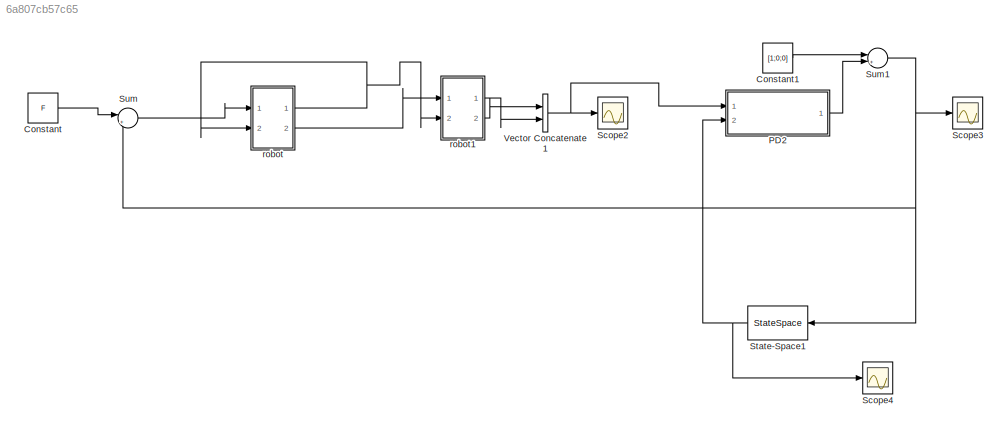
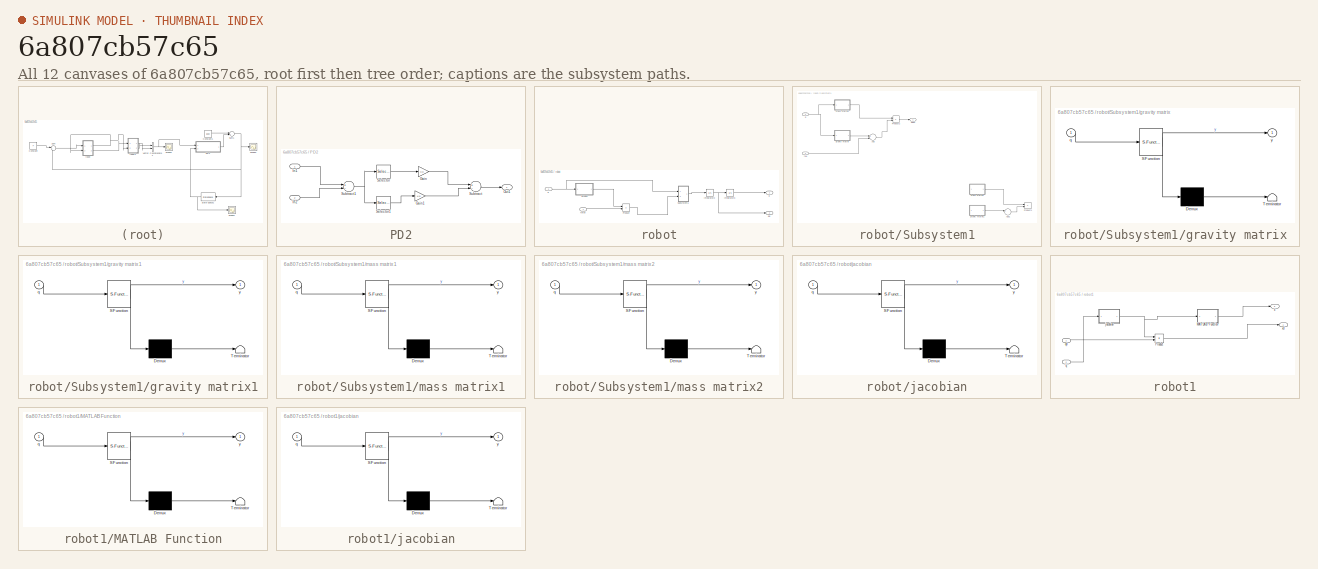
[diagram: thumbnail index - all 12 canvases of the model, root first then tree order]
MODEL slx_6a807cb57c65
KIND model
CONFIG AbsTol = auto
CONFIG EnableMultiTasking = off
CONFIG FixedStep = dt
CONFIG MaxStep = auto
CONFIG MinStep = auto
CONFIG RelTol = 1e-3
CONFIG SampleTimeConstraint = Unconstrained
CONFIG Solver = FixedStepAuto
CONFIG SolverName = FixedStepAuto
CONFIG StartTime = 0.0
CONFIG StopTime = 10.0
BLOCK [Constant] Constant
  Value = F
BLOCK [Constant] Constant1
  Value = [1;0;0]
BLOCK [SubSystem] PD2
  Ports = [2, 1]
  RequestExecContextInheritance = off
  Variant = off
BLOCK [Gain] PD2/Gain
  Gain = Kp
  Multiplication = Matrix(K*u)
  OutDataTypeStr = Inherit: Inherit via internal rule
  ParamDataTypeStr = Inherit: Inherit via internal rule
  SaturateOnIntegerOverflow = off
BLOCK [Gain] PD2/Gain1
  Gain = Kd
  Multiplication = Matrix(K*u)
  OutDataTypeStr = Inherit: Inherit via internal rule
  ParamDataTypeStr = Inherit: Inherit via internal rule
  SaturateOnIntegerOverflow = off
BLOCK [Inport] PD2/In1
  IconDisplay = Port number
BLOCK [Inport] PD2/In2
  IconDisplay = Port number
  Port = 2
BLOCK [Outport] PD2/Out1
  IconDisplay = Port number
BLOCK [Selector] PD2/Selector
  IndexOptions = Index vector (dialog)
  Indices = [1 2 3]
  InputPortWidth = 6
  OutputSizes = 1
  Ports = [1, 1]
BLOCK [Selector] PD2/Selector1
  IndexOptions = Index vector (dialog)
  Indices = [4 5 6]
  InputPortWidth = 6
  OutputSizes = 1
  Ports = [1, 1]
BLOCK [Sum] PD2/Subtract
  InputSameDT = off
  Inputs = +-
  OutDataTypeStr = Inherit: Inherit via internal rule
  Ports = [2, 1]
  SaturateOnIntegerOverflow = off
BLOCK [Sum] PD2/Subtract1
  InputSameDT = off
  Inputs = +-
  OutDataTypeStr = Inherit: Inherit via internal rule
  Ports = [2, 1]
  SaturateOnIntegerOverflow = off
BLOCK [Scope] Scope2
  NumInputPorts = 1
  Ports = [1]
  ScopeSpecificationString = Simulink.scopes.TimeScopeBlockCfg('CurrentConfiguration', extmgr.ConfigurationSet(extmgr.Configuration('Core','General UI',true),extmgr.Configuration('Core','Source UI',true),extmgr.Configuration('Sources','WiredSimulink',true),extmgr.Configuration('Visuals','Time Domain',true,'SerializedDisplays',{struct('MinYLimReal','-210989467652306654321970023235584.00000','MaxYLimReal','641620163270695202645...<+1671ch>
BLOCK [Scope] Scope3
  NumInputPorts = 1
  Ports = [1]
  ScopeSpecificationString = Simulink.scopes.TimeScopeBlockCfg('CurrentConfiguration', extmgr.ConfigurationSet(extmgr.Configuration('Core','General UI',true),extmgr.Configuration('Core','Source UI',true),extmgr.Configuration('Sources','WiredSimulink',true,'DataLoggingVariableName','ScopeData2'),extmgr.Configuration('Visuals','Time Domain',true,'SerializedDisplays',{struct('MinYLimReal','-12806452281483888925069870722054570706...<+1813ch>
BLOCK [Scope] Scope4
  NumInputPorts = 1
  Ports = [1]
  ScopeSpecificationString = Simulink.scopes.TimeScopeBlockCfg('CurrentConfiguration', extmgr.ConfigurationSet(extmgr.Configuration('Core','General UI',true),extmgr.Configuration('Core','Source UI',true),extmgr.Configuration('Sources','WiredSimulink',true,'DataLoggingVariableName','ScopeData1'),extmgr.Configuration('Visuals','Time Domain',true,'SerializedDisplays',{struct('MinYLimReal','-11592196985058423316505133689229496496...<+1814ch>
BLOCK [StateSpace] State-Space1
  A = A
  B = B
  C = C
  D = D
  Ports = [1, 1]
  X0 = [0;0;0;0;0;0]
BLOCK [Sum] Sum
  IconShape = round
  InputSameDT = off
  Inputs = |+-
  OutDataTypeStr = Inherit: Inherit via internal rule
  Ports = [2, 1]
  SaturateOnIntegerOverflow = off
BLOCK [Sum] Sum1
  IconShape = round
  InputSameDT = off
  Inputs = |++
  OutDataTypeStr = Inherit: Inherit via internal rule
  Ports = [2, 1]
  SaturateOnIntegerOverflow = off
BLOCK [Concatenate] Vector Concatenate1
  Ports = [2, 1]
BLOCK [SubSystem] robot
  Ports = [2, 2]
  RequestExecContextInheritance = off
  Variant = off
BLOCK [Integrator] robot/Integrator2
  InitialCondition = [0;0;0]
  Ports = [1, 1]
BLOCK [Integrator] robot/Integrator3
  InitialCondition = [0;0;0]
  Ports = [1, 1]
BLOCK [Product] robot/Product
  InputSameDT = off
  Multiplication = Matrix(*)
  OutDataTypeStr = Inherit: Inherit via internal rule
  Ports = [2, 1]
  RndMeth = Floor
  SaturateOnIntegerOverflow = off
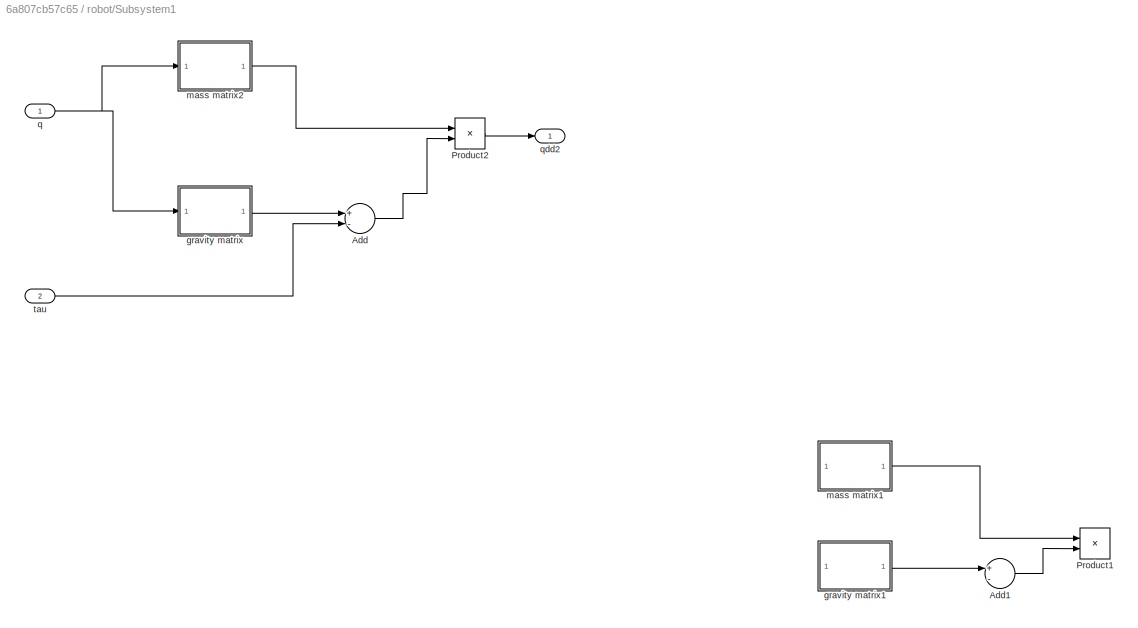
BLOCK [SubSystem] robot/Subsystem1
  Ports = [2, 1]
  RequestExecContextInheritance = off
  Variant = off
BLOCK [Sum] robot/Subsystem1/Add
  InputSameDT = off
  Inputs = +-
  OutDataTypeStr = Inherit: Inherit via internal rule
  Ports = [2, 1]
  SaturateOnIntegerOverflow = off
BLOCK [Sum] robot/Subsystem1/Add1
  Commented = on
  InputSameDT = off
  Inputs = +-
  OutDataTypeStr = Inherit: Inherit via internal rule
  Ports = [2, 1]
  SaturateOnIntegerOverflow = off
BLOCK [Product] robot/Subsystem1/Product1
  Commented = on
  InputSameDT = off
  Multiplication = Matrix(*)
  OutDataTypeStr = Inherit: Inherit via internal rule
  Ports = [2, 1]
  RndMeth = Floor
  SaturateOnIntegerOverflow = off
BLOCK [Product] robot/Subsystem1/Product2
  InputSameDT = off
  Multiplication = Matrix(*)
  OutDataTypeStr = Inherit: Inherit via internal rule
  Ports = [2, 1]
  RndMeth = Floor
  SaturateOnIntegerOverflow = off
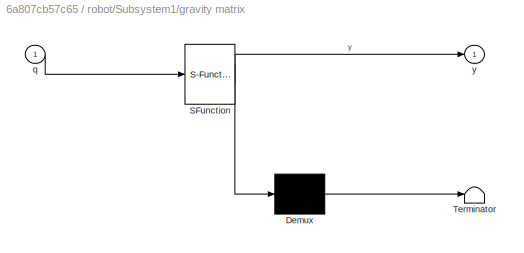
BLOCK [SubSystem] robot/Subsystem1/gravity matrix
  ErrorFcn = Stateflow.Translate.translate
  PermitHierarchicalResolution = ExplicitOnly
  Ports = [1, 1]
  RequestExecContextInheritance = off
  SFBlockType = MATLAB Function
  TreatAsAtomicUnit = on
  Variant = off
BLOCK [Demux] robot/Subsystem1/gravity matrix/ Demux 
  Outputs = 1
  Ports = [1, 1]
BLOCK [S-Function] robot/Subsystem1/gravity matrix/ SFunction 
  EnableBusSupport = on
  FunctionName = sf_sfun
  PortCounts = [1 2]
  Ports = [1, 2]
  SFcnIsStateOwnerBlock = off
  SFunctionDeploymentMode = off
  Tag = Stateflow S-Function controller 4
BLOCK [Terminator] robot/Subsystem1/gravity matrix/ Terminator 
BLOCK [Inport] robot/Subsystem1/gravity matrix/q
  IconDisplay = Port number
BLOCK [Outport] robot/Subsystem1/gravity matrix/y
  IconDisplay = Port number
BLOCK [SubSystem] robot/Subsystem1/gravity matrix1
  Commented = on
  ErrorFcn = Stateflow.Translate.translate
  PermitHierarchicalResolution = ExplicitOnly
  Ports = [1, 1]
  RequestExecContextInheritance = off
  SFBlockType = MATLAB Function
  TreatAsAtomicUnit = on
  Variant = off
BLOCK [Demux] robot/Subsystem1/gravity matrix1/ Demux 
  Outputs = 1
  Ports = [1, 1]
BLOCK [S-Function] robot/Subsystem1/gravity matrix1/ SFunction 
  EnableBusSupport = on
  FunctionName = sf_sfun
  PortCounts = [1 2]
  Ports = [1, 2]
  SFcnIsStateOwnerBlock = off
  SFunctionDeploymentMode = off
  Tag = Stateflow S-Function controller 2
BLOCK [Terminator] robot/Subsystem1/gravity matrix1/ Terminator 
BLOCK [Inport] robot/Subsystem1/gravity matrix1/q
  IconDisplay = Port number
BLOCK [Outport] robot/Subsystem1/gravity matrix1/y
  IconDisplay = Port number
BLOCK [SubSystem] robot/Subsystem1/mass matrix1
  Commented = on
  ErrorFcn = Stateflow.Translate.translate
  PermitHierarchicalResolution = ExplicitOnly
  Ports = [1, 1]
  RequestExecContextInheritance = off
  SFBlockType = MATLAB Function
  TreatAsAtomicUnit = on
  Variant = off
BLOCK [Demux] robot/Subsystem1/mass matrix1/ Demux 
  Outputs = 1
  Ports = [1, 1]
BLOCK [S-Function] robot/Subsystem1/mass matrix1/ SFunction 
  EnableBusSupport = on
  FunctionName = sf_sfun
  PortCounts = [1 2]
  Ports = [1, 2]
  SFcnIsStateOwnerBlock = off
  SFunctionDeploymentMode = off
  Tag = Stateflow S-Function controller 3
BLOCK [Terminator] robot/Subsystem1/mass matrix1/ Terminator 
BLOCK [Inport] robot/Subsystem1/mass matrix1/q
  IconDisplay = Port number
BLOCK [Outport] robot/Subsystem1/mass matrix1/y
  IconDisplay = Port number
BLOCK [SubSystem] robot/Subsystem1/mass matrix2
  ErrorFcn = Stateflow.Translate.translate
  PermitHierarchicalResolution = ExplicitOnly
  Ports = [1, 1]
  RequestExecContextInheritance = off
  SFBlockType = MATLAB Function
  TreatAsAtomicUnit = on
  Variant = off
BLOCK [Demux] robot/Subsystem1/mass matrix2/ Demux 
  Outputs = 1
  Ports = [1, 1]
BLOCK [S-Function] robot/Subsystem1/mass matrix2/ SFunction 
  EnableBusSupport = on
  FunctionName = sf_sfun
  PortCounts = [1 2]
  Ports = [1, 2]
  SFcnIsStateOwnerBlock = off
  SFunctionDeploymentMode = off
  Tag = Stateflow S-Function controller 5
BLOCK [Terminator] robot/Subsystem1/mass matrix2/ Terminator 
BLOCK [Inport] robot/Subsystem1/mass matrix2/q
  IconDisplay = Port number
BLOCK [Outport] robot/Subsystem1/mass matrix2/y
  IconDisplay = Port number
BLOCK [Inport] robot/Subsystem1/q
  IconDisplay = Port number
BLOCK [Outport] robot/Subsystem1/qdd2
  IconDisplay = Port number
BLOCK [Inport] robot/Subsystem1/tau
  IconDisplay = Port number
  Port = 2
BLOCK [Inport] robot/force
  IconDisplay = Port number
BLOCK [SubSystem] robot/jacobian
  ErrorFcn = Stateflow.Translate.translate
  PermitHierarchicalResolution = ExplicitOnly
  Ports = [1, 1]
  RequestExecContextInheritance = off
  SFBlockType = MATLAB Function
  TreatAsAtomicUnit = on
  Variant = off
BLOCK [Demux] robot/jacobian/ Demux 
  Outputs = 1
  Ports = [1, 1]
BLOCK [S-Function] robot/jacobian/ SFunction 
  EnableBusSupport = on
  FunctionName = sf_sfun
  PortCounts = [1 2]
  Ports = [1, 2]
  SFcnIsStateOwnerBlock = off
  SFunctionDeploymentMode = off
  Tag = Stateflow S-Function controller 1
BLOCK [Terminator] robot/jacobian/ Terminator 
BLOCK [Inport] robot/jacobian/q
  IconDisplay = Port number
BLOCK [Outport] robot/jacobian/y
  IconDisplay = Port number
BLOCK [Inport] robot/q
  IconDisplay = Port number
  Port = 2
BLOCK [Outport] robot/q 
  IconDisplay = Port number
BLOCK [Outport] robot/qd
  IconDisplay = Port number
  Port = 2
BLOCK [SubSystem] robot1
  Ports = [2, 2]
  RequestExecContextInheritance = off
  Variant = off
BLOCK [SubSystem] robot1/MATLAB Function
  ErrorFcn = Stateflow.Translate.translate
  PermitHierarchicalResolution = ExplicitOnly
  Ports = [1, 1]
  RequestExecContextInheritance = off
  SFBlockType = MATLAB Function
  TreatAsAtomicUnit = on
  Variant = off
BLOCK [Demux] robot1/MATLAB Function/ Demux 
  Outputs = 1
  Ports = [1, 1]
BLOCK [S-Function] robot1/MATLAB Function/ SFunction 
  EnableBusSupport = on
  FunctionName = sf_sfun
  PortCounts = [1 2]
  Ports = [1, 2]
  SFcnIsStateOwnerBlock = off
  SFunctionDeploymentMode = off
  Tag = Stateflow S-Function controller 6
BLOCK [Terminator] robot1/MATLAB Function/ Terminator 
BLOCK [Inport] robot1/MATLAB Function/q
  IconDisplay = Port number
BLOCK [Outport] robot1/MATLAB Function/y
  IconDisplay = Port number
BLOCK [Product] robot1/Product
  InputSameDT = off
  Multiplication = Matrix(*)
  OutDataTypeStr = Inherit: Inherit via internal rule
  Ports = [2, 1]
  RndMeth = Floor
  SaturateOnIntegerOverflow = off
BLOCK [SubSystem] robot1/jacobian
  ErrorFcn = Stateflow.Translate.translate
  PermitHierarchicalResolution = ExplicitOnly
  Ports = [1, 1]
  RequestExecContextInheritance = off
  SFBlockType = MATLAB Function
  TreatAsAtomicUnit = on
  Variant = off
BLOCK [Demux] robot1/jacobian/ Demux 
  Outputs = 1
  Ports = [1, 1]
BLOCK [S-Function] robot1/jacobian/ SFunction 
  EnableBusSupport = on
  FunctionName = sf_sfun
  PortCounts = [1 2]
  Ports = [1, 2]
  SFcnIsStateOwnerBlock = off
  SFunctionDeploymentMode = off
  Tag = Stateflow S-Function controller 10
BLOCK [Terminator] robot1/jacobian/ Terminator 
BLOCK [Inport] robot1/jacobian/q
  IconDisplay = Port number
BLOCK [Outport] robot1/jacobian/y
  IconDisplay = Port number
BLOCK [Inport] robot1/q
  IconDisplay = Port number
  Port = 2
BLOCK [Inport] robot1/qd
  IconDisplay = Port number
BLOCK [Outport] robot1/x
  IconDisplay = Port number
  Port = 2
BLOCK [Outport] robot1/xd
  IconDisplay = Port number
LINE Constant1:1 -> Sum1:1
LINE Constant:1 -> Sum:1
LINE PD2/Gain1:1 -> PD2/Subtract:2
LINE PD2/Gain:1 -> PD2/Subtract:1
LINE PD2/In1:1 -> PD2/Subtract1:1
LINE PD2/In2:1 -> PD2/Subtract1:2
LINE PD2/Selector1:1 -> PD2/Gain1:1
LINE PD2/Selector:1 -> PD2/Gain:1
NET PD2/Subtract1:1 -> PD2/Selector1:1, PD2/Selector:1
LINE PD2/Subtract:1 -> PD2/Out1:1
LINE PD2:1 -> Sum1:2
NET State-Space1:1 -> PD2:2, Scope4:1
NET Sum1:1 -> Scope3:1, State-Space1:1, Sum:2
LINE Sum:1 -> robot:1
NET Vector Concatenate1:1 -> PD2:1, Scope2:1
NET robot/Integrator2:1 -> robot/Integrator3:1, robot/qd:1
LINE robot/Integrator3:1 -> robot/q :1
LINE robot/Product:1 -> robot/Subsystem1:2
LINE robot/Subsystem1/Add1:1 -> robot/Subsystem1/Product1:2
LINE robot/Subsystem1/Add:1 -> robot/Subsystem1/Product2:2
LINE robot/Subsystem1/Product2:1 -> robot/Subsystem1/qdd2:1
LINE robot/Subsystem1/gravity matrix1:1 -> robot/Subsystem1/Add1:1
LINE robot/Subsystem1/gravity matrix:1 -> robot/Subsystem1/Add:1
LINE robot/Subsystem1/mass matrix1:1 -> robot/Subsystem1/Product1:1
LINE robot/Subsystem1/mass matrix2:1 -> robot/Subsystem1/Product2:1
NET robot/Subsystem1/q:1 -> robot/Subsystem1/gravity matrix:1, robot/Subsystem1/mass matrix2:1
LINE robot/Subsystem1/tau:1 -> robot/Subsystem1/Add:2
LINE robot/Subsystem1:1 -> robot/Integrator2:1
LINE robot/force:1 -> robot/Product:2
LINE robot/jacobian:1 -> robot/Product:1
NET robot/q:1 -> robot/Subsystem1:1, robot/jacobian:1
LINE robot1/MATLAB Function:1 -> robot1/x:1
LINE robot1/Product:1 -> robot1/xd:1
NET robot1/jacobian:1 -> robot1/MATLAB Function:1, robot1/Product:1
LINE robot1/q:1 -> robot1/jacobian:1
LINE robot1/qd:1 -> robot1/Product:2
LINE robot1:1 -> Vector Concatenate1:2
LINE robot1:2 -> Vector Concatenate1:1
NET robot:1 -> robot1:2, robot:2
LINE robot:2 -> robot1:1
note: NET lines group one-source signal fan-out (src -> all destinations, sorted); 1:1 wires keep LINE
CHART robot/jacobian states=1 transitions=1
  STATE_LABEL 'eML_blk_kernel()'
  STATE_LABEL 'SCRIPT:\nfunction y = fcn(q)\n  \n    [j1,j2,j3] = getJ(q)  \n\n    y = transpose(j3);'
CHART robot/Subsystem1/gravity matrix1 states=1 transitions=1
  STATE_LABEL 'eML_blk_kernel()'
  STATE_LABEL 'SCRIPT:\nfunction y = fcn(q)\n  \n   \n    m = 1;\n    w = 2;\n    h = 2.5;\n    l0 = 15;\n    l1 = 22;\n    l2 = 17;\n    l = [l0;l1;l2]; \n\n    g = [0;0;-9.81];\n    \n    [j1,j2,j3] = getJ(q)\n\n    G1 = transpose(j1)*g;\n    G2 = transpose(j2)*g;\n    G3 = transpose(j3)*g;\n\n    y = G1+G2+G3;'
CHART robot/Subsystem1/mass matrix1 states=1 transitions=1
  STATE_LABEL 'eML_blk_kernel()'
  STATE_LABEL 'SCRIPT:\nfunction y = fcn(q)\n  \n   \n    m = 1;\n    w = 2;\n    h = 2.5;\n    l0 = 15;\n    l1 = 22;\n    l2 = 17;\n    l = [l0;l1;l2]; \n\n    M = zeros(3,3,3);\n  \n    for ii = 1:3\n\n      M(1,1,ii) = m;\n      M(2,2,ii) = m;\n      M(3,3,ii) = m;\n\n    end\n\n  \n    [j1,j2,j3] = getJ(q)\n\n    M1 = j1*M(:,:,1)*transpose(j1)\n    M2 = j2*M(:,:,1)*transpose(j2)\n    M3 = j3*M(:,:,1)*transpose(j3)\n\n\n    y = pinv(M1+M...<+6ch>'
CHART robot/Subsystem1/gravity matrix states=1 transitions=1
  STATE_LABEL 'eML_blk_kernel()'
  STATE_LABEL 'SCRIPT:\nfunction y = fcn(q)\n  \n   \n    m = 1;\n    w = 2;\n    h = 2.5;\n    l0 = 15;\n    l1 = 22;\n    l2 = 17;\n    l = [l0;l1;l2]; \n\n    g = [0;0;-9.81];\n    \n    [j1,j2,j3] = getJ(q)\n\n    G1 = transpose(j1)*g;\n    G2 = transpose(j2)*g;\n    G3 = transpose(j3)*g;\n\n    y = G1+G2+G3;'
CHART robot/Subsystem1/mass matrix2 states=1 transitions=1
  STATE_LABEL 'eML_blk_kernel()'
  STATE_LABEL 'SCRIPT:\nfunction y = fcn(q)\n  \n   \n    m = 1;\n    w = 2;\n    h = 2.5;\n    l0 = 15;\n    l1 = 22;\n    l2 = 17;\n    l = [l0;l1;l2]; \n\n    M = zeros(3,3,3);\n  \n    for ii = 1:3\n\n      M(1,1,ii) = m;\n      M(2,2,ii) = m;\n      M(3,3,ii) = m;\n\n    end\n\n  \n    [j1,j2,j3] = getJ(q)\n\n    M1 = transpose(j1)*M(:,:,1)*j1\n    M2 = transpose(j2)*M(:,:,2)*transpose(j2)\n    M3 = transpose(j3)*M(:,:,3)*transpose(j...<+41ch>'
CHART robot1/MATLAB Function states=1 transitions=1
  STATE_LABEL 'eML_blk_kernel()'
  STATE_LABEL 'SCRIPT:\nfunction y = fcn(q)\n\ny = fk(q);\n'
CHART robot1/jacobian states=1 transitions=1
  STATE_LABEL 'eML_blk_kernel()'
  STATE_LABEL 'SCRIPT:\nfunction y = fcn(q)\n  \n    [j1,j2,j3] = getJ(q)  \n\n    y = j3;'
